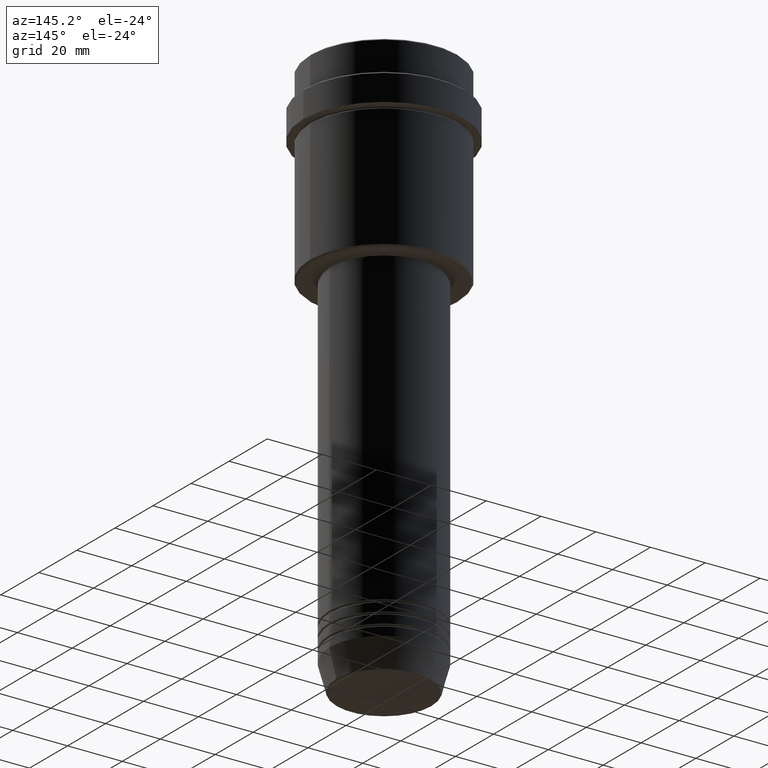
[diagram: clean part render]
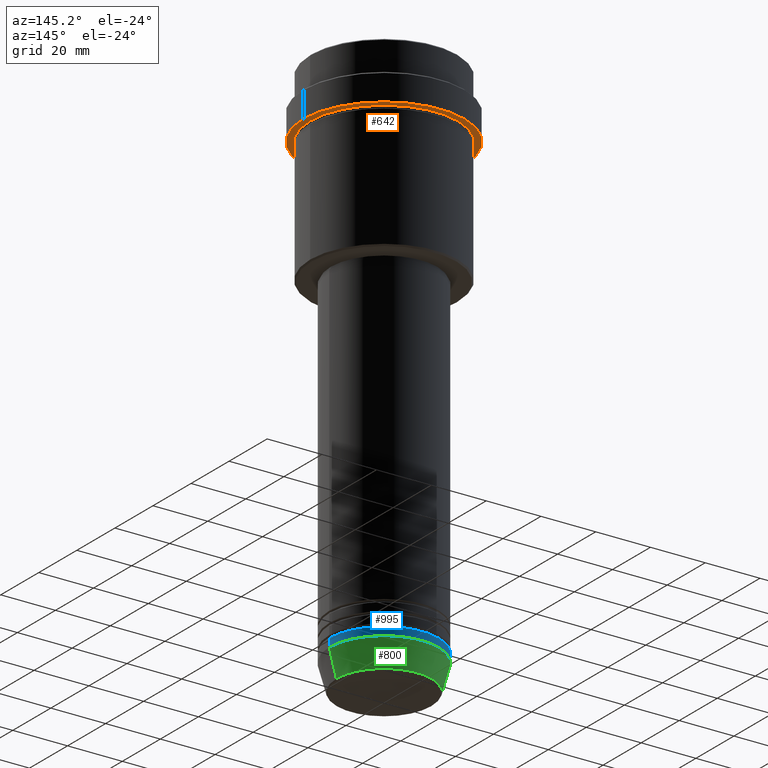
[diagram: same view with three faces highlighted in distinct colors, each labeled with its STEP entity id]
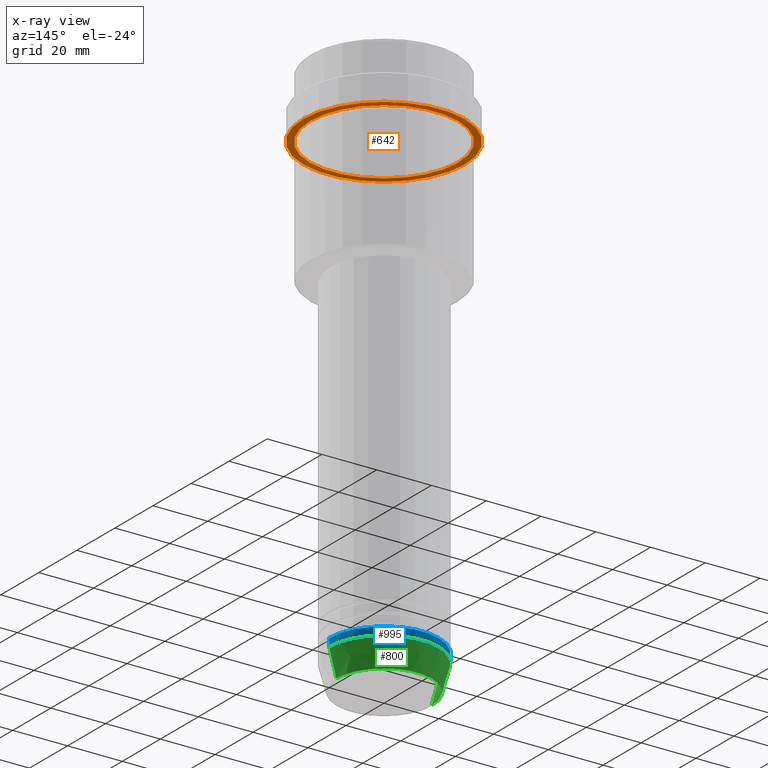
[diagram: x-ray of the same camera — body ghosted, the three highlighted faces saturated]
A machine part, auxiliary view with three faces highlighted in distinct colors.
The next image is the same camera in x-ray (body ghosted, the three faces saturated) — at least one of them is partly hidden behind the body in this view.
Their STEP definitions:

[orange] entity #642 — the highlighted planar face has unit normal (0, 0, -1).
#6 = DIRECTION ( 'NONE',  ( -0.000000000000000000, -0.000000000000000000, 1.000000000000000000 ) ) ;
#7 = AXIS2_PLACEMENT_3D ( 'NONE', #1108, #742, #773 ) ;
#52 = AXIS2_PLACEMENT_3D ( 'NONE', #569, #6, #467 ) ;
#63 = EDGE_LOOP ( 'NONE', ( #1300, #366 ) ) ;
#67 = CARTESIAN_POINT ( 'NONE',  ( 29.49999999999999645, 0.000000000000000000, -22.00000000000000711 ) ) ;
#90 = VERTEX_POINT ( 'NONE', #745 ) ;
#111 = EDGE_LOOP ( 'NONE', ( #1197, #449 ) ) ;
#180 = DIRECTION ( 'NONE',  ( -0.000000000000000000, -0.000000000000000000, 1.000000000000000000 ) ) ;
#337 = CIRCLE ( 'NONE', #1313, 29.49999999999999645 ) ;
#366 = ORIENTED_EDGE ( 'NONE', *, *, #1150, .T. ) ;
#399 = EDGE_CURVE ( 'NONE', #90, #405, #1117, .T. ) ;
#405 = VERTEX_POINT ( 'NONE', #67 ) ;
#442 = DIRECTION ( 'NONE',  ( -0.000000000000000000, -0.000000000000000000, 1.000000000000000000 ) ) ;
#449 = ORIENTED_EDGE ( 'NONE', *, *, #399, .F. ) ;
#453 = AXIS2_PLACEMENT_3D ( 'NONE', #874, #777, #1212 ) ;
#467 = DIRECTION ( 'NONE',  ( -1.000000000000000000, 0.000000000000000000, 0.000000000000000000 ) ) ;
#482 = VERTEX_POINT ( 'NONE', #602 ) ;
#493 = CIRCLE ( 'NONE', #52, 26.99999999999999645 ) ;
#569 = CARTESIAN_POINT ( 'NONE',  ( 0.000000000000000000, 0.000000000000000000, -22.00000000000000711 ) ) ;
#576 = FACE_OUTER_BOUND ( 'NONE', #111, .T. ) ;
#602 = CARTESIAN_POINT ( 'NONE',  ( 26.99999999999999645, 3.306546357697853339E-15, -22.00000000000000711 ) ) ;
#617 = VERTEX_POINT ( 'NONE', #899 ) ;
#642 = ADVANCED_FACE ( 'NONE', ( #678, #576 ), #1312, .T. ) ;
#669 = CARTESIAN_POINT ( 'NONE',  ( 0.000000000000000000, 0.000000000000000000, -22.00000000000000711 ) ) ;
#678 = FACE_BOUND ( 'NONE', #63, .T. ) ;
#683 = EDGE_CURVE ( 'NONE', #617, #482, #493, .T. ) ;
#742 = DIRECTION ( 'NONE',  ( 0.000000000000000000, 0.000000000000000000, -1.000000000000000000 ) ) ;
#745 = CARTESIAN_POINT ( 'NONE',  ( -29.49999999999999645, 3.612708057484690815E-15, -22.00000000000000711 ) ) ;
#773 = DIRECTION ( 'NONE',  ( -1.000000000000000000, 0.000000000000000000, -0.000000000000000000 ) ) ;
#777 = DIRECTION ( 'NONE',  ( -0.000000000000000000, -0.000000000000000000, 1.000000000000000000 ) ) ;
#874 = CARTESIAN_POINT ( 'NONE',  ( 0.000000000000000000, 0.000000000000000000, -22.00000000000000711 ) ) ;
#899 = CARTESIAN_POINT ( 'NONE',  ( -26.99999999999999645, 0.000000000000000000, -22.00000000000000711 ) ) ;
#934 = AXIS2_PLACEMENT_3D ( 'NONE', #1371, #180, #1068 ) ;
#1066 = EDGE_CURVE ( 'NONE', #405, #90, #337, .T. ) ;
#1068 = DIRECTION ( 'NONE',  ( 1.000000000000000000, 0.000000000000000000, 0.000000000000000000 ) ) ;
#1108 = CARTESIAN_POINT ( 'NONE',  ( 0.000000000000000000, 29.49999999999999645, -22.00000000000000711 ) ) ;
#1116 = CIRCLE ( 'NONE', #453, 26.99999999999999645 ) ;
#1117 = CIRCLE ( 'NONE', #934, 29.49999999999999645 ) ;
#1150 = EDGE_CURVE ( 'NONE', #482, #617, #1116, .T. ) ;
#1197 = ORIENTED_EDGE ( 'NONE', *, *, #1066, .F. ) ;
#1212 = DIRECTION ( 'NONE',  ( -1.000000000000000000, 0.000000000000000000, 0.000000000000000000 ) ) ;
#1300 = ORIENTED_EDGE ( 'NONE', *, *, #683, .T. ) ;
#1312 = PLANE ( 'NONE',  #7 ) ;
#1313 = AXIS2_PLACEMENT_3D ( 'NONE', #669, #442, #1410 ) ;
#1371 = CARTESIAN_POINT ( 'NONE',  ( 0.000000000000000000, 0.000000000000000000, -22.00000000000000711 ) ) ;
#1410 = DIRECTION ( 'NONE',  ( 1.000000000000000000, 0.000000000000000000, 0.000000000000000000 ) ) ;

[blue] entity #995 — the highlighted cylindrical surface (partial cylindrical patch) has radius 20 mm, axis along (-0, -0, 1).
#22 = DIRECTION ( 'NONE',  ( 1.000000000000000000, 0.000000000000000000, 0.000000000000000000 ) ) ;
#79 = AXIS2_PLACEMENT_3D ( 'NONE', #868, #1179, #421 ) ;
#109 = CARTESIAN_POINT ( 'NONE',  ( 0.000000000000000000, 0.000000000000000000, -190.0000000000000000 ) ) ;
#112 = VERTEX_POINT ( 'NONE', #189 ) ;
#124 = VECTOR ( 'NONE', #983, 1000.000000000000000 ) ;
#189 = CARTESIAN_POINT ( 'NONE',  ( -20.00000000000000000, 2.449293598294706513E-15, -193.0000000000000000 ) ) ;
#218 = LINE ( 'NONE', #880, #124 ) ;
#306 = CYLINDRICAL_SURFACE ( 'NONE', #79, 20.00000000000000000 ) ;
#397 = ORIENTED_EDGE ( 'NONE', *, *, #556, .F. ) ;
#406 = AXIS2_PLACEMENT_3D ( 'NONE', #109, #452, #22 ) ;
#421 = DIRECTION ( 'NONE',  ( 1.000000000000000000, 0.000000000000000000, 0.000000000000000000 ) ) ;
#452 = DIRECTION ( 'NONE',  ( -0.000000000000000000, -0.000000000000000000, 1.000000000000000000 ) ) ;
#485 = CARTESIAN_POINT ( 'NONE',  ( 20.00000000000000000, 0.000000000000000000, 0.000000000000000000 ) ) ;
#509 = EDGE_CURVE ( 'NONE', #887, #112, #1045, .T. ) ;
#528 = CIRCLE ( 'NONE', #406, 20.00000000000000000 ) ;
#556 = EDGE_CURVE ( 'NONE', #1057, #972, #528, .T. ) ;
#583 = ORIENTED_EDGE ( 'NONE', *, *, #1101, .T. ) ;
#607 = VECTOR ( 'NONE', #1051, 1000.000000000000000 ) ;
#623 = EDGE_LOOP ( 'NONE', ( #673, #583, #397, #1337 ) ) ;
#639 = CARTESIAN_POINT ( 'NONE',  ( 20.00000000000000000, 0.000000000000000000, -193.0000000000000000 ) ) ;
#673 = ORIENTED_EDGE ( 'NONE', *, *, #509, .T. ) ;
#701 = AXIS2_PLACEMENT_3D ( 'NONE', #1145, #935, #1364 ) ;
#733 = FACE_OUTER_BOUND ( 'NONE', #623, .T. ) ;
#735 = EDGE_CURVE ( 'NONE', #887, #1057, #1346, .T. ) ;
#868 = CARTESIAN_POINT ( 'NONE',  ( 0.000000000000000000, 0.000000000000000000, 0.000000000000000000 ) ) ;
#880 = CARTESIAN_POINT ( 'NONE',  ( -20.00000000000000000, 2.449293598294706513E-15, 0.000000000000000000 ) ) ;
#887 = VERTEX_POINT ( 'NONE', #639 ) ;
#935 = DIRECTION ( 'NONE',  ( -0.000000000000000000, -0.000000000000000000, 1.000000000000000000 ) ) ;
#972 = VERTEX_POINT ( 'NONE', #1279 ) ;
#983 = DIRECTION ( 'NONE',  ( -0.000000000000000000, -0.000000000000000000, 1.000000000000000000 ) ) ;
#995 = ADVANCED_FACE ( 'NONE', ( #733 ), #306, .T. ) ;
#1045 = CIRCLE ( 'NONE', #701, 20.00000000000000000 ) ;
#1051 = DIRECTION ( 'NONE',  ( -0.000000000000000000, -0.000000000000000000, 1.000000000000000000 ) ) ;
#1057 = VERTEX_POINT ( 'NONE', #1332 ) ;
#1101 = EDGE_CURVE ( 'NONE', #112, #972, #218, .T. ) ;
#1145 = CARTESIAN_POINT ( 'NONE',  ( 0.000000000000000000, 0.000000000000000000, -193.0000000000000000 ) ) ;
#1179 = DIRECTION ( 'NONE',  ( -0.000000000000000000, -0.000000000000000000, 1.000000000000000000 ) ) ;
#1279 = CARTESIAN_POINT ( 'NONE',  ( -20.00000000000000000, 2.449293598294706513E-15, -190.0000000000000000 ) ) ;
#1332 = CARTESIAN_POINT ( 'NONE',  ( 20.00000000000000000, 0.000000000000000000, -190.0000000000000000 ) ) ;
#1337 = ORIENTED_EDGE ( 'NONE', *, *, #735, .F. ) ;
#1346 = LINE ( 'NONE', #485, #607 ) ;
#1364 = DIRECTION ( 'NONE',  ( 1.000000000000000000, 0.000000000000000000, 0.000000000000000000 ) ) ;

[green] entity #800 — the highlighted conical surface has half-angle 15 deg.
#50 = EDGE_CURVE ( 'NONE', #1289, #112, #824, .T. ) ;
#112 = VERTEX_POINT ( 'NONE', #189 ) ;
#189 = CARTESIAN_POINT ( 'NONE',  ( -20.00000000000000000, 2.449293598294706513E-15, -193.0000000000000000 ) ) ;
#204 = CARTESIAN_POINT ( 'NONE',  ( 0.000000000000000000, 0.000000000000000000, -202.6294095225512706 ) ) ;
#217 = ORIENTED_EDGE ( 'NONE', *, *, #50, .T. ) ;
#235 = EDGE_CURVE ( 'NONE', #831, #887, #1090, .T. ) ;
#283 = DIRECTION ( 'NONE',  ( -0.000000000000000000, -0.000000000000000000, 1.000000000000000000 ) ) ;
#362 = CARTESIAN_POINT ( 'NONE',  ( 0.000000000000000000, 0.000000000000000000, -193.0000000000000000 ) ) ;
#370 = FACE_OUTER_BOUND ( 'NONE', #1171, .T. ) ;
#387 = CARTESIAN_POINT ( 'NONE',  ( -17.41980749484382329, 2.291302373663531915E-15, -202.6294095225512706 ) ) ;
#414 = ORIENTED_EDGE ( 'NONE', *, *, #1008, .T. ) ;
#509 = EDGE_CURVE ( 'NONE', #887, #112, #1045, .T. ) ;
#513 = CARTESIAN_POINT ( 'NONE',  ( -20.00000000000000000, 2.449293598294706513E-15, -193.0000000000000000 ) ) ;
#533 = DIRECTION ( 'NONE',  ( -0.2588190451025211836, 3.169619151431770488E-17, 0.9659258262890680902 ) ) ;
#546 = AXIS2_PLACEMENT_3D ( 'NONE', #204, #1198, #560 ) ;
#560 = DIRECTION ( 'NONE',  ( 1.000000000000000000, 0.000000000000000000, 0.000000000000000000 ) ) ;
#639 = CARTESIAN_POINT ( 'NONE',  ( 20.00000000000000000, 0.000000000000000000, -193.0000000000000000 ) ) ;
#646 = DIRECTION ( 'NONE',  ( 0.2588190451025211836, 0.000000000000000000, 0.9659258262890680902 ) ) ;
#701 = AXIS2_PLACEMENT_3D ( 'NONE', #1145, #935, #1364 ) ;
#791 = AXIS2_PLACEMENT_3D ( 'NONE', #362, #283, #798 ) ;
#798 = DIRECTION ( 'NONE',  ( 1.000000000000000000, 0.000000000000000000, 0.000000000000000000 ) ) ;
#800 = ADVANCED_FACE ( 'NONE', ( #370 ), #1001, .T. ) ;
#824 = LINE ( 'NONE', #513, #886 ) ;
#831 = VERTEX_POINT ( 'NONE', #1022 ) ;
#886 = VECTOR ( 'NONE', #533, 1000.000000000000114 ) ;
#887 = VERTEX_POINT ( 'NONE', #639 ) ;
#935 = DIRECTION ( 'NONE',  ( -0.000000000000000000, -0.000000000000000000, 1.000000000000000000 ) ) ;
#1001 = CONICAL_SURFACE ( 'NONE', #791, 20.00000000000000000, 0.2617993877991499074 ) ;
#1008 = EDGE_CURVE ( 'NONE', #831, #1289, #1156, .T. ) ;
#1021 = VECTOR ( 'NONE', #646, 1000.000000000000114 ) ;
#1022 = CARTESIAN_POINT ( 'NONE',  ( 17.41980749484382329, 0.000000000000000000, -202.6294095225512706 ) ) ;
#1045 = CIRCLE ( 'NONE', #701, 20.00000000000000000 ) ;
#1090 = LINE ( 'NONE', #1190, #1021 ) ;
#1145 = CARTESIAN_POINT ( 'NONE',  ( 0.000000000000000000, 0.000000000000000000, -193.0000000000000000 ) ) ;
#1156 = CIRCLE ( 'NONE', #546, 17.41980749484382329 ) ;
#1171 = EDGE_LOOP ( 'NONE', ( #414, #217, #1355, #1234 ) ) ;
#1190 = CARTESIAN_POINT ( 'NONE',  ( 20.00000000000000000, 0.000000000000000000, -193.0000000000000000 ) ) ;
#1198 = DIRECTION ( 'NONE',  ( -0.000000000000000000, -0.000000000000000000, 1.000000000000000000 ) ) ;
#1234 = ORIENTED_EDGE ( 'NONE', *, *, #235, .F. ) ;
#1289 = VERTEX_POINT ( 'NONE', #387 ) ;
#1355 = ORIENTED_EDGE ( 'NONE', *, *, #509, .F. ) ;
#1364 = DIRECTION ( 'NONE',  ( 1.000000000000000000, 0.000000000000000000, 0.000000000000000000 ) ) ;